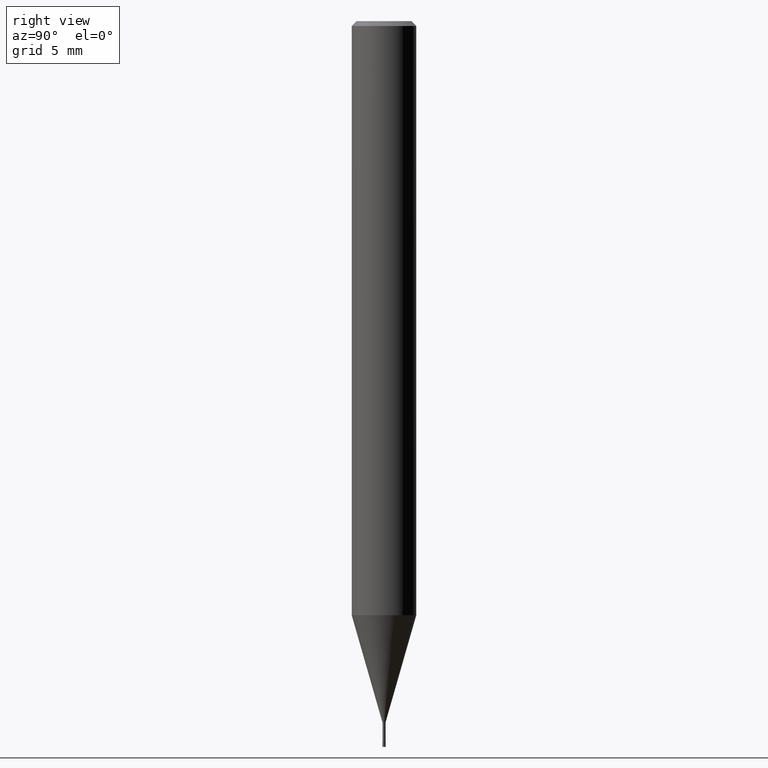
[diagram: clean part render]
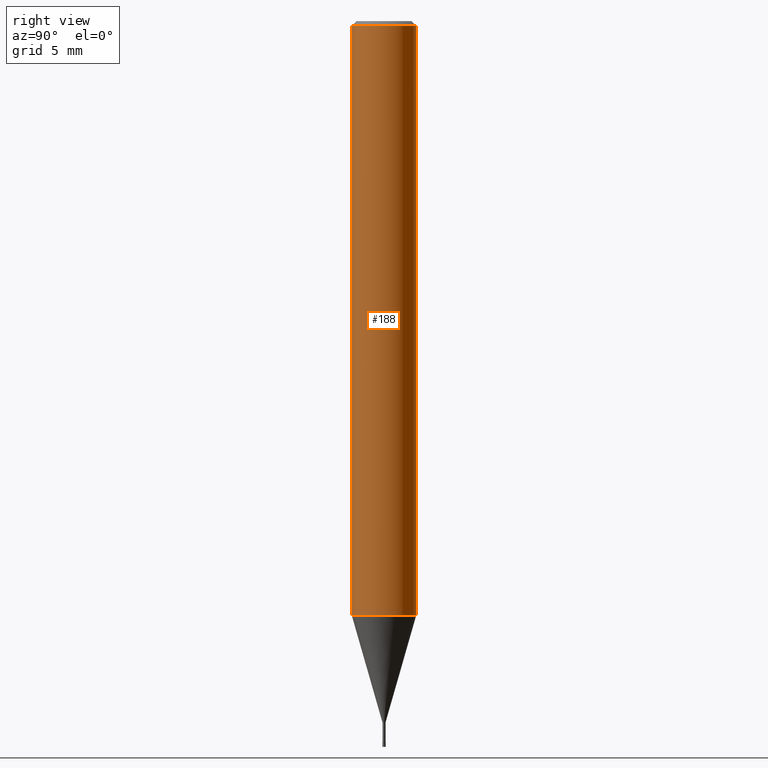
[diagram: same view with one face highlighted and labeled with its STEP entity id]
A machine part, right view. The second image highlights one B-rep face of the part: STEP entity #188.
In plain terms, the highlighted cylindrical surface (edge-blend (fillet) strip) has radius 2 mm, axis along (-0, -0, 1).
Its self-contained STEP definition (entity closure, byte-faithful):
#94=EDGE_CURVE('',#138,#204,#231,.T.);
#110=EDGE_CURVE('',#138,#126,#250,.T.);
#126=VERTEX_POINT('',#268);
#138=VERTEX_POINT('',#280);
#172=EDGE_CURVE('',#126,#194,#320,.T.);
#182=EDGE_CURVE('',#194,#204,#332,.T.);
#188=ADVANCED_FACE('',(#339),#340,.T.);
#194=VERTEX_POINT('',#346);
#204=VERTEX_POINT('',#357);
#231=CIRCLE('',#378,2.0);
#250=LINE('',#403,#404);
#268=CARTESIAN_POINT('',(0.0,2.0,-36.839));
#280=CARTESIAN_POINT('',(0.0,2.0,-0.299999999999997));
#320=CIRCLE('',#490,2.0);
#332=LINE('',#504,#505);
#339=FACE_OUTER_BOUND('',#512,.T.);
#340=CYLINDRICAL_SURFACE('',#513,2.0);
#346=CARTESIAN_POINT('',(2.44921270764475E-016,-2.0,-36.839));
#357=CARTESIAN_POINT('',(2.44921270764475E-016,-2.0,-0.299999999999997));
#378=AXIS2_PLACEMENT_3D('',#545,#546,#547);
#403=CARTESIAN_POINT('',(-2.44921270764475E-016,2.0,-18.5695));
#404=VECTOR('',#572,1.0);
#490=AXIS2_PLACEMENT_3D('',#664,#665,#666);
#504=CARTESIAN_POINT('',(2.44921270764475E-016,-2.0,-18.5695));
#505=VECTOR('',#684,1.0);
#512=EDGE_LOOP('',(#694,#695,#696,#697));
#513=AXIS2_PLACEMENT_3D('',#698,#699,#700);
#545=CARTESIAN_POINT('',(0.0,0.0,-0.299999999999997));
#546=DIRECTION('',(0.0,0.0,-1.0));
#547=DIRECTION('',(0.0,1.0,0.0));
#572=DIRECTION('',(0.0,0.0,-1.0));
#664=CARTESIAN_POINT('',(0.0,0.0,-36.839));
#665=DIRECTION('',(0.0,0.0,-1.0));
#666=DIRECTION('',(0.0,1.0,0.0));
#684=DIRECTION('',(-0.0,-0.0,1.0));
#694=ORIENTED_EDGE('',*,*,#110,.F.);
#695=ORIENTED_EDGE('',*,*,#94,.T.);
#696=ORIENTED_EDGE('',*,*,#182,.F.);
#697=ORIENTED_EDGE('',*,*,#172,.F.);
#698=CARTESIAN_POINT('',(0.0,0.0,-18.5695));
#699=DIRECTION('',(-0.0,-0.0,1.0));
#700=DIRECTION('',(0.0,1.0,0.0));